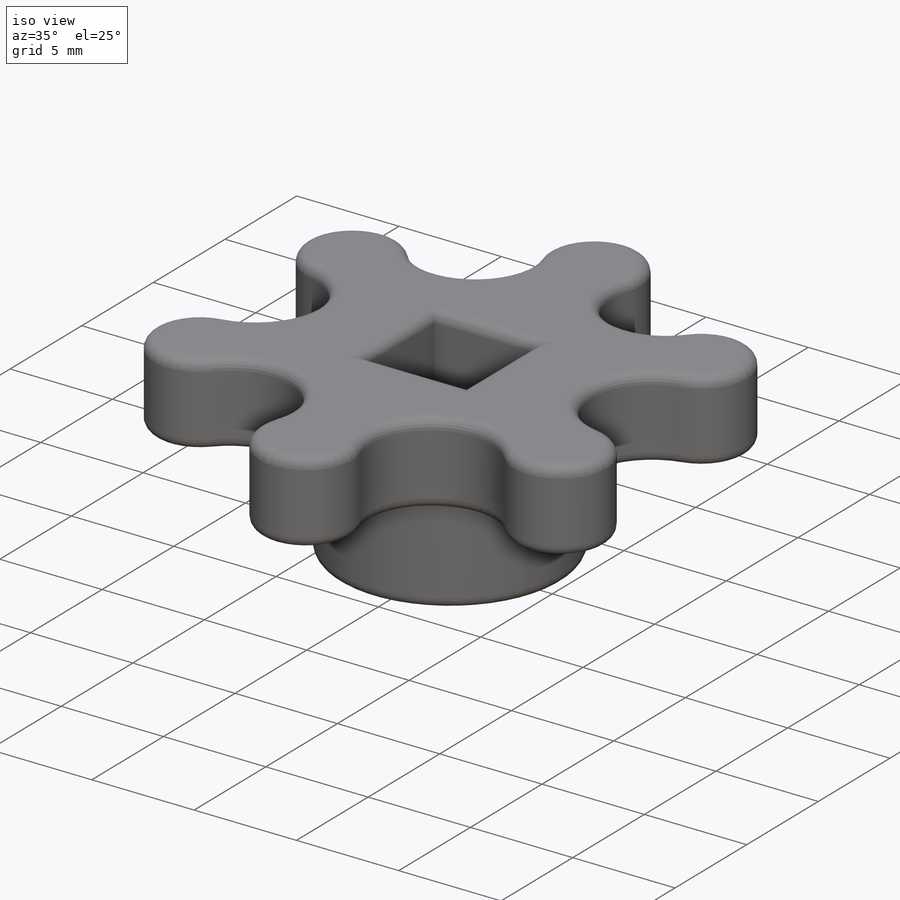
[diagram: iso view]
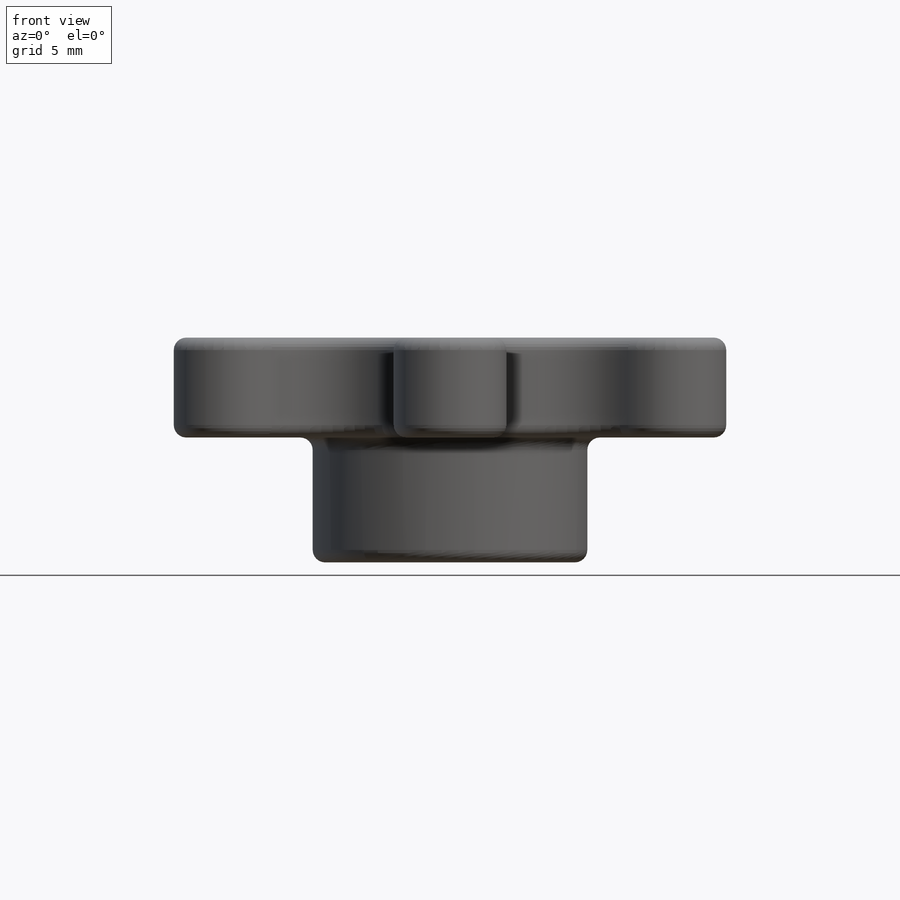
[diagram: front view]
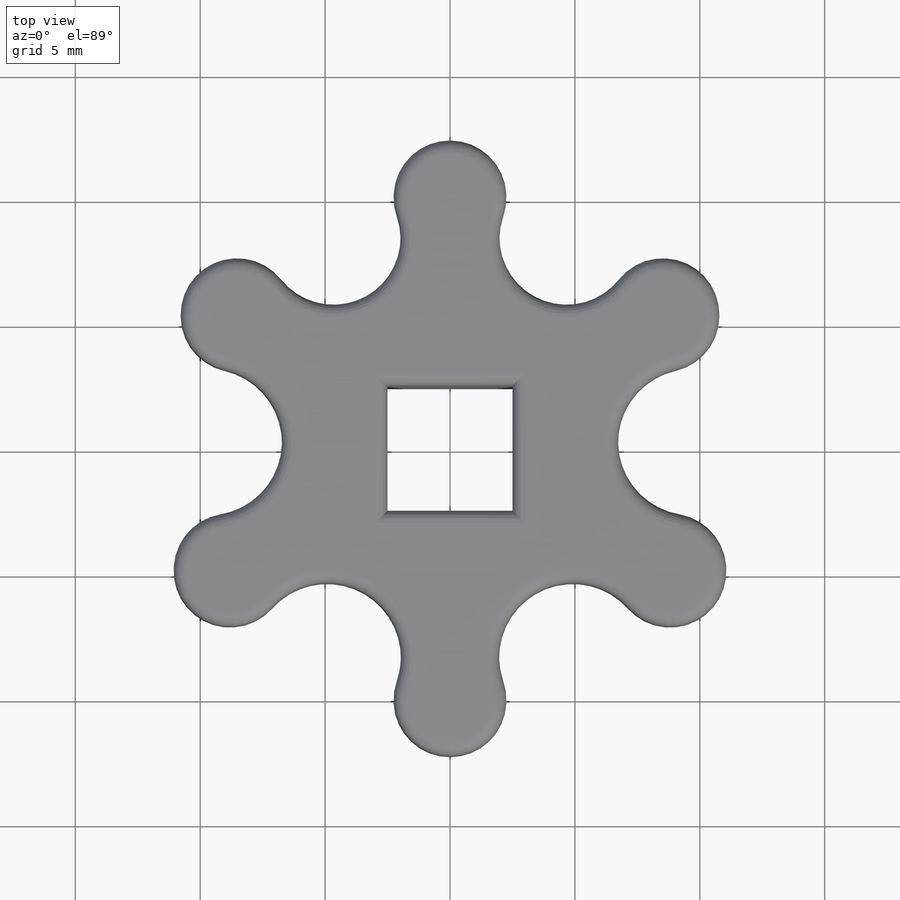
[diagram: top view]
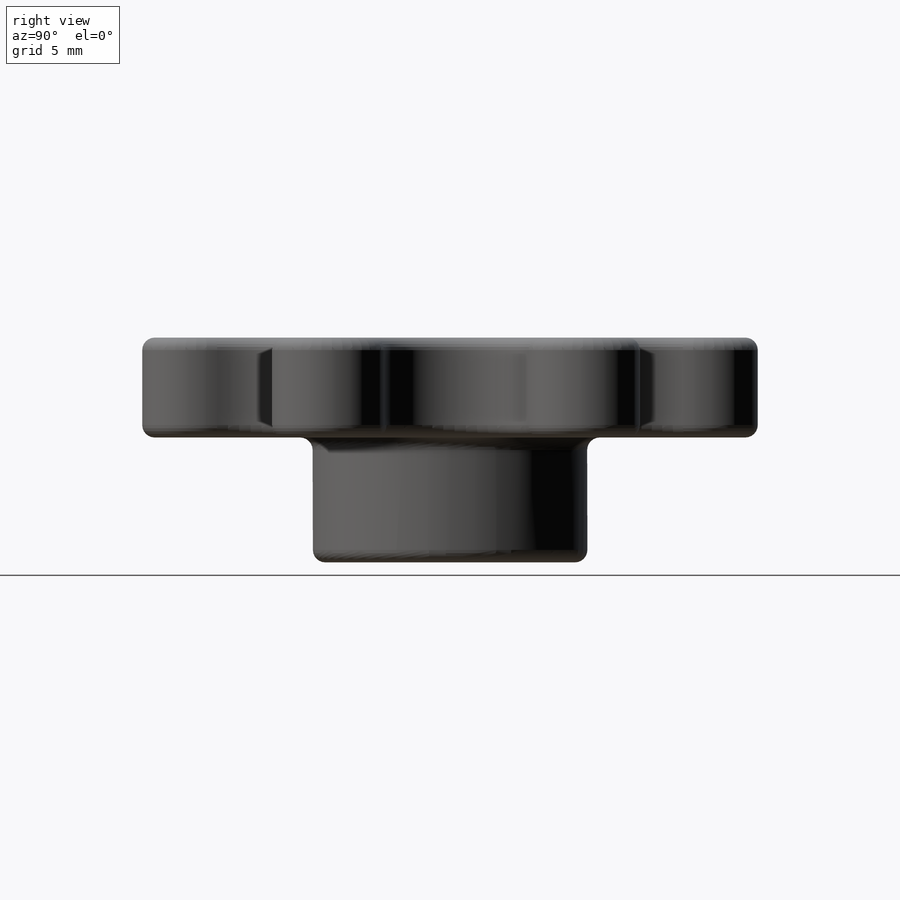
[diagram: right view]
SOLIDWORKS PART (.sldprt)
format: sldprt  version: not decoded by parser v0  size: 378,880 bytes
history: native  units: mm
features: plane x3, sketch x2, extrude x2, fillet x2, material x1 (+9 scaffold rows collapsed)
feature tree (19):
  scaffold x9  (default folders/planes/origin — collapsed)
  material  "Matériau <non spécifié>"
  plane  "Plan de face"
  plane  "Plan de dessus"
  plane  "Plan de droite"
  sketch  "Esquisse1"  dims[c1.D1=~24.641447mm c1.D2=~4.693609mm c1.D3=~19.116829mm c1.D4=10.0mm c2.D2=~4.101203mm c2.D4=~4.969869mm c3.D2=5.0mm c3.D4=5.0mm]
  extrude  "Boss.-Extru.1"  Depth=4mm
  sketch  "Esquisse2"  dims[D1=11.0mm]
  extrude  "Boss.-Extru.2"  Depth=5mm
  fillet  "Congé3"  Radius=0.5mm
  fillet  "Congé1"  Radius=0.5mm
decode coverage: 6 of 6 modeling features carry decoded parameters
note: ~ marks probable driven/reference dimensions
note: suppression state not decoded; provenance and decode notes live in map.json
